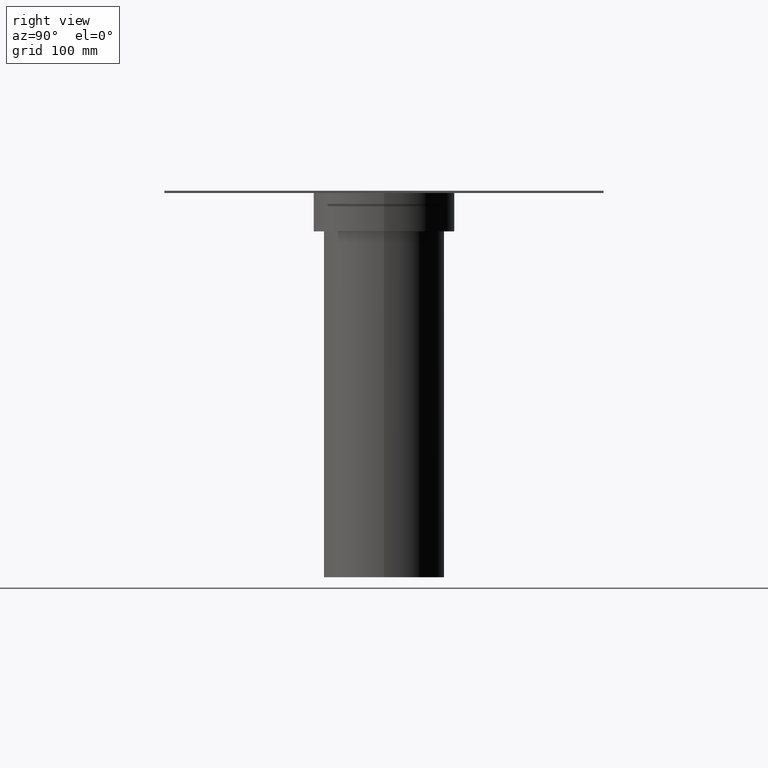
[diagram: clean part render]
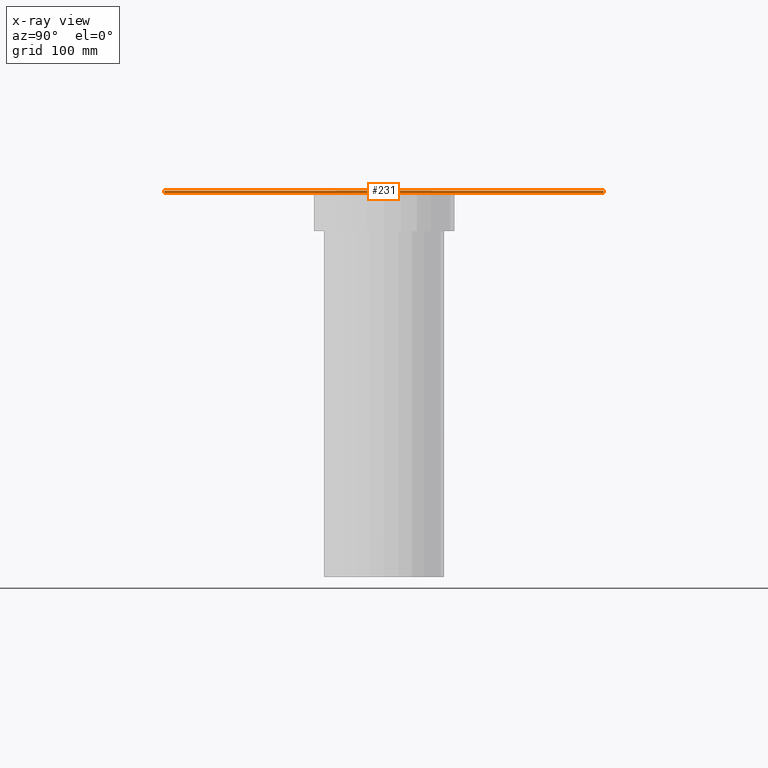
[diagram: x-ray — body ghosted, one internal face saturated and labeled with its STEP entity id]
A machine part, right view, then the same camera in x-ray: the body is ghosted and one INTERNAL B-rep face — a face not visible from any outside direction — is saturated and labeled: STEP entity #231.
In plain terms, the highlighted planar face has unit normal (1, -0, 0).
Its self-contained STEP definition (entity closure, byte-faithful):
#21=PLANE('',#273);
#33=FACE_OUTER_BOUND('',#49,.T.);
#49=EDGE_LOOP('',(#171,#172,#173,#174));
#67=LINE('',#387,#85);
#68=LINE('',#389,#86);
#69=LINE('',#391,#87);
#70=LINE('',#392,#88);
#85=VECTOR('',#313,304.8);
#86=VECTOR('',#314,304.8);
#87=VECTOR('',#315,304.8);
#88=VECTOR('',#316,304.8);
#117=VERTEX_POINT('',#385);
#118=VERTEX_POINT('',#386);
#119=VERTEX_POINT('',#388);
#120=VERTEX_POINT('',#390);
#139=EDGE_CURVE('',#117,#118,#67,.T.);
#140=EDGE_CURVE('',#119,#117,#68,.T.);
#141=EDGE_CURVE('',#120,#119,#69,.T.);
#142=EDGE_CURVE('',#118,#120,#70,.T.);
#171=ORIENTED_EDGE('',*,*,#139,.F.);
#172=ORIENTED_EDGE('',*,*,#140,.F.);
#173=ORIENTED_EDGE('',*,*,#141,.F.);
#174=ORIENTED_EDGE('',*,*,#142,.F.);
#231=ADVANCED_FACE('',(#33),#21,.T.);
#273=AXIS2_PLACEMENT_3D('',#384,#311,#312);
#311=DIRECTION('center_axis',(1.,-8.45989944764366E-17,0.));
#312=DIRECTION('ref_axis',(0.,0.,-1.));
#313=DIRECTION('',(0.,1.,0.));
#314=DIRECTION('',(0.,0.,1.));
#315=DIRECTION('',(0.,-1.,0.));
#316=DIRECTION('',(0.,0.,-1.));
#384=CARTESIAN_POINT('Origin',(200.,-200.000000000001,-217.999999999993));
#385=CARTESIAN_POINT('',(200.,-200.000000000001,-217.999999999993));
#386=CARTESIAN_POINT('',(200.,200.000000000001,-217.999999999993));
#387=CARTESIAN_POINT('',(200.,-200.000000000001,-217.999999999993));
#388=CARTESIAN_POINT('',(200.,-200.000000000001,-220.));
#389=CARTESIAN_POINT('',(200.,-200.000000000001,-220.));
#390=CARTESIAN_POINT('',(200.,200.000000000001,-220.));
#391=CARTESIAN_POINT('',(200.,200.000000000001,-220.));
#392=CARTESIAN_POINT('',(200.,200.000000000001,-217.999999999993));